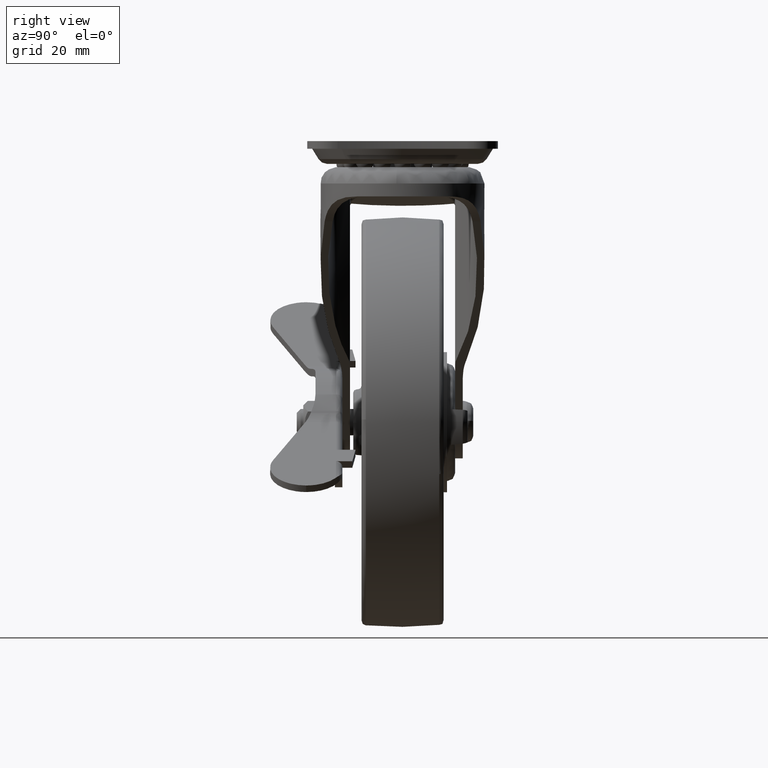
[diagram: clean part render]
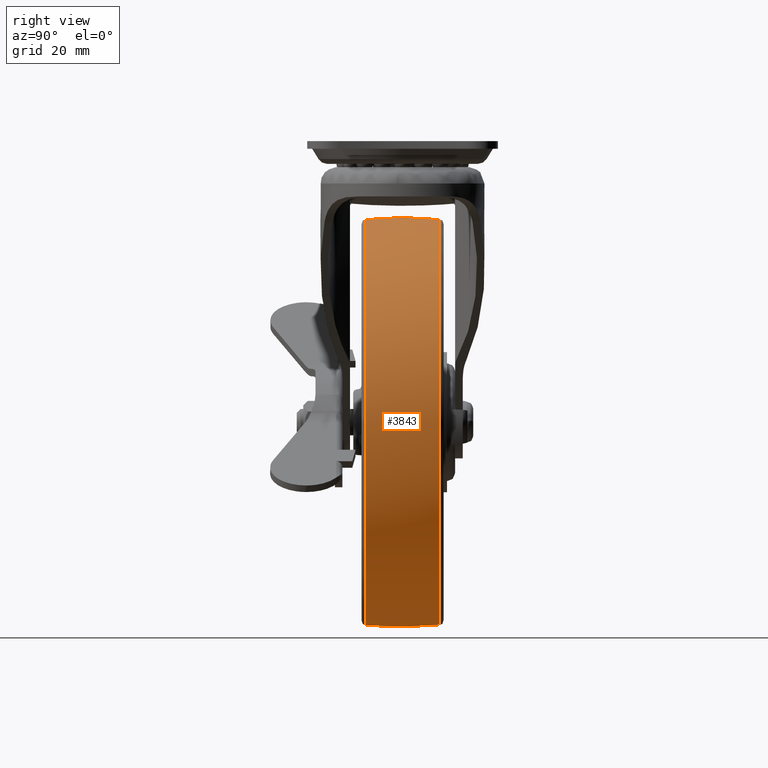
[diagram: same view with one face highlighted and labeled with its STEP entity id]
A machine part, right view. The second image highlights one B-rep face of the part: STEP entity #3843.
In plain terms, the highlighted face is a freeform B-spline surface patch.
Its self-contained STEP definition (entity closure, byte-faithful):
#2851=CARTESIAN_POINT('',(16.859412527473442,-11.167512597833190,-59.533276290392408));
#2852=VERTEX_POINT('',#2851);
#2863=CARTESIAN_POINT('',(61.562073908779453,-11.167494984552761,6.209828626464164));
#2864=VERTEX_POINT('',#2863);
#2865=CARTESIAN_POINT('',(16.859412527473442,-11.167512597833190,-59.533276290392408));
#2866=CARTESIAN_POINT('',(19.779889423920679,-11.167512336681380,-58.706384537097918));
#2867=CARTESIAN_POINT('',(25.075100244093569,-11.167511752581250,-56.775918324539418));
#2868=CARTESIAN_POINT('',(31.449868477677260,-11.167510782123030,-53.409821435803892));
#2869=CARTESIAN_POINT('',(37.164953625297443,-11.167509711725790,-49.610869769303747));
#2870=CARTESIAN_POINT('',(43.420109269480001,-11.167508282070459,-44.446605725990217));
#2871=CARTESIAN_POINT('',(49.691280078881263,-11.167506352003700,-37.332373718013223));
#2872=CARTESIAN_POINT('',(55.070472615917417,-11.167504056032641,-28.733114503879030));
#2873=CARTESIAN_POINT('',(58.236004099876872,-11.167502116083160,-21.376933087126641));
#2874=CARTESIAN_POINT('',(60.566785780693529,-11.167500026810300,-13.383878927019740));
#2875=CARTESIAN_POINT('',(62.001430653033559,-11.167497776846581,-4.705626064282719));
#2876=CARTESIAN_POINT('',(61.946085645110642,-11.167495953496321,2.406929011685041));
#2877=CARTESIAN_POINT('',(61.562073908779453,-11.167494984552761,6.209828626464164));
#2878=B_SPLINE_CURVE_WITH_KNOTS('',3,(#2865,#2866,#2867,#2868,#2869,#2870,#2871,#2872,#2873,#2874,#2875,#2876,#2877),.UNSPECIFIED.,.F.,.U.,(4,1,1,1,1,1,1,1,1,1,4),(0.000000105371925,9.105830402682670,16.862730323061768,21.584321026624391,29.678457207908831,41.145121938275530,49.913713041385542,60.031370087974388,65.090217756134479,74.870641165721864,86.337282250866195),.UNSPECIFIED.);
#2879=EDGE_CURVE('',#2852,#2864,#2878,.T.);
#2993=CARTESIAN_POINT('',(0.0,-11.167479573969530,61.874480627391677));
#2994=VERTEX_POINT('',#2993);
#2995=CARTESIAN_POINT('',(61.562073908779453,-11.167494984552761,6.209828626464164));
#2996=CARTESIAN_POINT('',(61.276863344680301,-11.167494201487919,9.038341430434523));
#2997=CARTESIAN_POINT('',(60.335602527341393,-11.167492678676330,14.538897498625211));
#2998=CARTESIAN_POINT('',(57.631570533830399,-11.167490295754421,23.146262758455290));
#2999=CARTESIAN_POINT('',(53.880225632488539,-11.167488166177050,30.838520856866261));
#3000=CARTESIAN_POINT('',(49.095677892527831,-11.167486206877779,37.915716552200081));
#3001=CARTESIAN_POINT('',(44.019795432876840,-11.167484597928169,43.727411819881759));
#3002=CARTESIAN_POINT('',(38.327256764961703,-11.167483205525150,48.756918576589712));
#3003=CARTESIAN_POINT('',(32.866604230864688,-11.167482158122439,52.540247989536837));
#3004=CARTESIAN_POINT('',(27.273556623982650,-11.167481295501929,55.656123085024852));
#3005=CARTESIAN_POINT('',(21.065115627156640,-11.167480553017009,58.338059976592220));
#3006=CARTESIAN_POINT('',(11.844963400643280,-11.167479799059819,61.061428851653012));
#3007=CARTESIAN_POINT('',(4.619748107059763,-11.167479573745160,61.875291857040651));
#3008=CARTESIAN_POINT('',(0.0,-11.167479573969530,61.874480627391677));
#3009=B_SPLINE_CURVE_WITH_KNOTS('',3,(#2995,#2996,#2997,#2998,#2999,#3000,#3001,#3002,#3003,#3004,#3005,#3006,#3007,#3008),.UNSPECIFIED.,.F.,.U.,(4,1,1,1,1,1,1,1,1,1,1,4),(0.000000113590133,8.528566040540525,16.701884107855459,27.007324096017189,34.114553427486349,42.287852773010989,50.105663590315913,56.857487190341757,62.187883483216382,69.295100764930510,77.113012623152315,90.972028512225108),.UNSPECIFIED.);
#3010=EDGE_CURVE('',#2864,#2994,#3009,.T.);
#3012=CARTESIAN_POINT('',(-61.460647073771582,-11.167501287082860,7.144222296539931));
#3013=VERTEX_POINT('',#3012);
#3030=CARTESIAN_POINT('',(0.0,-11.167512887776420,-61.874476883661302));
#3031=VERTEX_POINT('',#3030);
#3032=CARTESIAN_POINT('',(-61.460647073771582,-11.167501287082860,7.144222296539931));
#3033=CARTESIAN_POINT('',(-61.979180758717654,-11.167501661321150,2.690331571045671));
#3034=CARTESIAN_POINT('',(-62.023983494592237,-11.167502272571690,-3.870004329647657));
#3035=CARTESIAN_POINT('',(-60.610880343321327,-11.167503260472550,-13.149955568758690));
#3036=CARTESIAN_POINT('',(-58.687790853326568,-11.167504073255950,-20.107724461787260));
#3037=CARTESIAN_POINT('',(-55.599155764955050,-11.167505025866619,-27.519172189814331));
#3038=CARTESIAN_POINT('',(-52.012263507580037,-11.167505912542820,-33.783580281619308));
#3039=CARTESIAN_POINT('',(-47.390076977000540,-11.167506882061380,-40.009774576224252));
#3040=CARTESIAN_POINT('',(-41.589999520645861,-11.167507941587990,-46.147214953599850));
#3041=CARTESIAN_POINT('',(-34.364970574592348,-11.167509069054271,-51.740492006263203));
#3042=CARTESIAN_POINT('',(-26.152308543419259,-11.167510182514830,-56.304868922395471));
#3043=CARTESIAN_POINT('',(-17.626020485415719,-11.167511200293610,-59.569308080627721));
#3044=CARTESIAN_POINT('',(-8.696015462472317,-11.167512124876961,-61.480081179273682));
#3045=CARTESIAN_POINT('',(-2.717506502511815,-11.167512660931980,-61.874559378929909));
#3046=CARTESIAN_POINT('',(0.0,-11.167512887776420,-61.874476883661302));
#3047=B_SPLINE_CURVE_WITH_KNOTS('',3,(#3032,#3033,#3034,#3035,#3036,#3037,#3038,#3039,#3040,#3041,#3042,#3043,#3044,#3045,#3046),.UNSPECIFIED.,.F.,.U.,(4,1,1,1,1,1,1,1,1,1,1,1,4),(0.000000125674163,13.451679294680901,19.566083521502861,28.126286304788142,35.055985607053771,43.616132099812603,49.730567388617096,58.290675936112351,68.888968557066391,77.041552464943550,86.416992886463404,96.200054336922094,104.352582866004890),.UNSPECIFIED.);
#3048=EDGE_CURVE('',#3013,#3031,#3047,.T.);
#3050=CARTESIAN_POINT('',(0.0,-11.167512887776420,-61.874476883661302));
#3051=CARTESIAN_POINT('',(2.490154616855790,-11.167512887784779,-61.874544290290928));
#3052=CARTESIAN_POINT('',(8.181917578424297,-11.167512845165810,-61.530410046548710));
#3053=CARTESIAN_POINT('',(13.778981047584640,-11.167512705899011,-60.405873074403580));
#3054=CARTESIAN_POINT('',(16.859412527473442,-11.167512597833190,-59.533276290392408));
#3055=B_SPLINE_CURVE_WITH_KNOTS('',3,(#3050,#3051,#3052,#3053,#3054),.UNSPECIFIED.,.F.,.U.,(4,1,4),(3.378489E-009,7.470466359329732,17.075338907801250),.UNSPECIFIED.);
#3056=EDGE_CURVE('',#3031,#2852,#3055,.T.);
#3091=CARTESIAN_POINT('',(60.979178697177858,11.167504843705689,-10.487635207238760));
#3092=VERTEX_POINT('',#3091);
#3093=CARTESIAN_POINT('',(0.0,11.167495437939090,61.874477968507662));
#3094=VERTEX_POINT('',#3093);
#3095=CARTESIAN_POINT('',(60.979178697177858,11.167504843705689,-10.487635207238760));
#3096=CARTESIAN_POINT('',(61.454820366312262,11.167504482799670,-7.722777641504711));
#3097=CARTESIAN_POINT('',(61.971567659922691,11.167503825740210,-2.687669220174942));
#3098=CARTESIAN_POINT('',(61.833098177472110,11.167502928099809,4.194550428220630));
#3099=CARTESIAN_POINT('',(61.034779648637731,11.167502055586830,10.886883944581291));
#3100=CARTESIAN_POINT('',(59.322536241015399,11.167501091911410,18.281908804220262));
#3101=CARTESIAN_POINT('',(56.243793571941531,11.167500048840139,26.291302977946451));
#3102=CARTESIAN_POINT('',(52.469969469235288,11.167499170475420,33.040896590667479));
#3103=CARTESIAN_POINT('',(48.379155454535812,11.167498428462620,38.746475919660980));
#3104=CARTESIAN_POINT('',(43.725468229670057,11.167497744478970,44.009540186188389));
#3105=CARTESIAN_POINT('',(38.022143675528270,11.167497093876600,49.021054944545753));
#3106=CARTESIAN_POINT('',(30.459285122822841,11.167496430087651,54.141412895598720));
#3107=CARTESIAN_POINT('',(23.072205757853030,11.167495978020860,57.637896885005517));
#3108=CARTESIAN_POINT('',(14.762185127157400,11.167495644110559,60.232394809513650));
#3109=CARTESIAN_POINT('',(7.715056586952141,11.167495473981621,61.566023058931037));
#3110=CARTESIAN_POINT('',(2.384639335212711,11.167495436637100,61.874525518042852));
#3111=CARTESIAN_POINT('',(0.0,11.167495437939090,61.874477968507662));
#3112=B_SPLINE_CURVE_WITH_KNOTS('',3,(#3095,#3096,#3097,#3098,#3099,#3100,#3101,#3102,#3103,#3104,#3105,#3106,#3107,#3108,#3109,#3110,#3111),.UNSPECIFIED.,.F.,.U.,(4,1,1,1,1,1,1,1,1,1,1,1,1,1,4),(0.000000112440716,8.416420182960806,15.149633418515650,20.620347801944138,28.616029244789800,37.874196122649643,46.290636481085883,51.761409532512978,58.915341790764458,67.331776513109531,74.485833931352190,86.268923471231830,91.739657648492880,100.576989569171400,107.730922262188500),.UNSPECIFIED.);
#3113=EDGE_CURVE('',#3092,#3094,#3112,.T.);
#3166=CARTESIAN_POINT('',(-61.479178386582333,11.167516212091961,6.982929586580379));
#3167=VERTEX_POINT('',#3166);
#3178=CARTESIAN_POINT('',(-61.460644520456313,11.167516266079900,7.144222095596518));
#3179=VERTEX_POINT('',#3178);
#3180=CARTESIAN_POINT('',(-61.460644520456313,11.167516266079900,7.144222095596518));
#3181=CARTESIAN_POINT('',(-61.479178386582333,11.167516212091961,6.982929586580379));
#3182=QUASI_UNIFORM_CURVE('',1,(#3180,#3181),.UNSPECIFIED.,.F.,.U.);
#3183=EDGE_CURVE('',#3179,#3167,#3182,.T.);
#3228=CARTESIAN_POINT('',(0.0,11.167511433451340,-61.874475294835499));
#3229=VERTEX_POINT('',#3228);
#3230=CARTESIAN_POINT('',(0.0,11.167511433451340,-61.874475294835499));
#3231=CARTESIAN_POINT('',(3.836261005208519,11.167511433510461,-61.874936839795403));
#3232=CARTESIAN_POINT('',(10.154568963558500,11.167511357835711,-61.284824080287457));
#3233=CARTESIAN_POINT('',(19.582558686323079,11.167511054054829,-58.915940852145532));
#3234=CARTESIAN_POINT('',(27.231321652757241,11.167510652688559,-55.786087644373012));
#3235=CARTESIAN_POINT('',(33.772490525603402,11.167510163517340,-51.971527875860559));
#3236=CARTESIAN_POINT('',(39.160125470060443,11.167509660707140,-48.050617701435407));
#3237=CARTESIAN_POINT('',(44.116113087416103,11.167509088440410,-43.588077583547978));
#3238=CARTESIAN_POINT('',(48.736977072602642,11.167508412958130,-38.320668509546010));
#3239=CARTESIAN_POINT('',(53.531745558452812,11.167507534615529,-31.471349914353720));
#3240=CARTESIAN_POINT('',(58.111738987501752,11.167506366050770,-22.358882952052760));
#3241=CARTESIAN_POINT('',(60.272120825908551,11.167505371332799,-14.602071460544151));
#3242=CARTESIAN_POINT('',(60.979178697177858,11.167504843705689,-10.487635207238760));
#3243=B_SPLINE_CURVE_WITH_KNOTS('',3,(#3230,#3231,#3232,#3233,#3234,#3235,#3236,#3237,#3238,#3239,#3240,#3241,#3242),.UNSPECIFIED.,.F.,.U.,(4,1,1,1,1,1,1,1,1,1,4),(0.000000103656404,11.508688087308910,18.955506656600701,29.110270815815280,36.218589574005172,41.634517271217717,49.081191820645472,56.189556770551647,62.620894583763871,74.129651631407910,86.653792897077679),.UNSPECIFIED.);
#3244=EDGE_CURVE('',#3229,#3092,#3243,.T.);
#3246=CARTESIAN_POINT('',(-61.479178386582333,11.167516212091961,6.982929586580379));
#3247=CARTESIAN_POINT('',(-61.770124513527399,11.167516125314760,4.421797668801317));
#3248=CARTESIAN_POINT('',(-62.065823425153191,11.167515914560720,-1.415674865794476));
#3249=CARTESIAN_POINT('',(-61.202272688932389,11.167515524616229,-10.902578840936140));
#3250=CARTESIAN_POINT('',(-58.869005808712998,11.167515107998129,-19.724648011319950));
#3251=CARTESIAN_POINT('',(-55.747687556496523,11.167514718114230,-27.107231306895091));
#3252=CARTESIAN_POINT('',(-52.197259499532016,11.167514349573780,-33.526891505607153));
#3253=CARTESIAN_POINT('',(-47.868870627222392,11.167513971976650,-39.461032012075890));
#3254=CARTESIAN_POINT('',(-42.375116671419342,11.167513556959710,-45.297394943133384));
#3255=CARTESIAN_POINT('',(-35.684926447192353,11.167513109941130,-50.864048312855232));
#3256=CARTESIAN_POINT('',(-28.542252527820999,11.167512697086730,-55.107653707960047));
#3257=CARTESIAN_POINT('',(-21.551674663134659,11.167512337002460,-58.100235427067403));
#3258=CARTESIAN_POINT('',(-15.339955093197140,11.167512042616121,-60.084338730075849));
#3259=CARTESIAN_POINT('',(-8.004156854296042,11.167511729118390,-61.525917976957167));
#3260=CARTESIAN_POINT('',(-2.713281242241043,11.167511529196910,-61.874573409684388));
#3261=CARTESIAN_POINT('',(0.0,11.167511433451340,-61.874475294835499));
#3262=B_SPLINE_CURVE_WITH_KNOTS('',3,(#3246,#3247,#3248,#3249,#3250,#3251,#3252,#3253,#3254,#3255,#3256,#3257,#3258,#3259,#3260,#3261),.UNSPECIFIED.,.F.,.U.,(4,1,1,1,1,1,1,1,1,1,1,1,1,4),(0.000000124868507,7.732839601489516,17.500667068748360,28.489522183697890,35.001441968726809,41.513303051345673,50.467219237108772,56.978949585864299,65.525834878079280,76.514689404925875,81.805622835584856,88.317499699047147,96.050380110055798,104.190224726093310),.UNSPECIFIED.);
#3263=EDGE_CURVE('',#3167,#3229,#3262,.T.);
#3766=CARTESIAN_POINT('',(-61.328220371281880,-12.295962269001587,7.128894801781356));
#3767=CARTESIAN_POINT('',(-62.081977602067745,-6.171396417675270,7.216512801648682));
#3768=CARTESIAN_POINT('',(-62.081977602067745,0.0,7.216512801648682));
#3769=CARTESIAN_POINT('',(-62.081977602067752,6.171396417675260,7.216512801648682));
#3770=CARTESIAN_POINT('',(-61.328220371281880,12.295962269001564,7.128894801781353));
#3771=CARTESIAN_POINT('',(-61.741167425012129,-12.295962269001581,3.576407548566155));
#3772=CARTESIAN_POINT('',(-62.499999999999993,-6.171396417675267,3.620363545228846));
#3773=CARTESIAN_POINT('',(-62.499999999999993,0.0,3.620363545228846));
#3774=CARTESIAN_POINT('',(-62.499999999999993,6.171396417675259,3.620363545228846));
#3775=CARTESIAN_POINT('',(-61.741167425012129,12.295962269001571,3.576407548566155));
#3776=CARTESIAN_POINT('',(-61.741167425012129,-12.295962269001590,0.0));
#3777=CARTESIAN_POINT('',(-62.500000000000000,-6.171396417675269,0.0));
#3778=CARTESIAN_POINT('',(-62.500000000000000,0.0,0.0));
#3779=CARTESIAN_POINT('',(-62.500000000000000,6.171396417675260,0.0));
#3780=CARTESIAN_POINT('',(-61.741167425012144,12.295962269001569,0.0));
#3781=CARTESIAN_POINT('',(-61.741167425012144,-12.295962269001585,-61.741167425012144));
#3782=CARTESIAN_POINT('',(-62.500000000000014,-6.171396417675270,-62.500000000000014));
#3783=CARTESIAN_POINT('',(-62.500000000000000,0.0,-62.500000000000000));
#3784=CARTESIAN_POINT('',(-62.500000000000014,6.171396417675259,-62.500000000000014));
#3785=CARTESIAN_POINT('',(-61.741167425012144,12.295962269001564,-61.741167425012144));
#3786=CARTESIAN_POINT('',(0.0,-12.295962269001590,-61.741167425012129));
#3787=CARTESIAN_POINT('',(0.0,-6.171396417675269,-62.500000000000000));
#3788=CARTESIAN_POINT('',(0.0,0.0,-62.500000000000000));
#3789=CARTESIAN_POINT('',(0.0,6.171396417675260,-62.500000000000000));
#3790=CARTESIAN_POINT('',(0.0,12.295962269001569,-61.741167425012144));
#3791=CARTESIAN_POINT('',(61.741167425012144,-12.295962269001585,-61.741167425012144));
#3792=CARTESIAN_POINT('',(62.500000000000014,-6.171396417675270,-62.500000000000014));
#3793=CARTESIAN_POINT('',(62.500000000000000,0.0,-62.500000000000000));
#3794=CARTESIAN_POINT('',(62.500000000000014,6.171396417675259,-62.500000000000014));
#3795=CARTESIAN_POINT('',(61.741167425012144,12.295962269001564,-61.741167425012144));
#3796=CARTESIAN_POINT('',(61.741167425012129,-12.295962269001590,0.0));
#3797=CARTESIAN_POINT('',(62.500000000000000,-6.171396417675269,0.0));
#3798=CARTESIAN_POINT('',(62.500000000000000,0.0,0.0));
#3799=CARTESIAN_POINT('',(62.500000000000000,6.171396417675260,0.0));
#3800=CARTESIAN_POINT('',(61.741167425012144,12.295962269001569,0.0));
#3801=CARTESIAN_POINT('',(61.741167425012144,-12.295962269001585,61.741167425012144));
#3802=CARTESIAN_POINT('',(62.500000000000014,-6.171396417675270,62.500000000000014));
#3803=CARTESIAN_POINT('',(62.500000000000000,0.0,62.500000000000000));
#3804=CARTESIAN_POINT('',(62.500000000000014,6.171396417675259,62.500000000000014));
#3805=CARTESIAN_POINT('',(61.741167425012144,12.295962269001564,61.741167425012144));
#3806=CARTESIAN_POINT('',(0.0,-12.295962269001590,61.741167425012129));
#3807=CARTESIAN_POINT('',(0.0,-6.171396417675269,62.500000000000000));
#3808=CARTESIAN_POINT('',(0.0,0.0,62.500000000000000));
#3809=CARTESIAN_POINT('',(0.0,6.171396417675260,62.500000000000000));
#3810=CARTESIAN_POINT('',(0.0,12.295962269001569,61.741167425012144));
#3818=(BOUNDED_SURFACE()B_SPLINE_SURFACE(2,2,((#3766,#3771,#3776,#3781,#3786,#3791,#3796,#3801,#3806),(#3767,#3772,#3777,#3782,#3787,#3792,#3797,#3802,#3807),(#3768,#3773,#3778,#3783,#3788,#3793,#3798,#3803,#3808),(#3769,#3774,#3779,#3784,#3789,#3794,#3799,#3804,#3809),(#3770,#3775,#3780,#3785,#3790,#3795,#3800,#3805,#3810)),.UNSPECIFIED.,.F.,.F.,.U.)B_SPLINE_SURFACE_WITH_KNOTS((3,2,3),(3,2,2,2,3),(0.0,12.527872647056061,25.055745294112111),(0.0,8.284269519228245,111.837660112501990,215.391050705775800,318.944441299049570),.UNSPECIFIED.)GEOMETRIC_REPRESENTATION_ITEM()RATIONAL_B_SPLINE_SURFACE(((0.925297864220014,0.944330538634696,0.966988483466114,0.683764113988185,0.966988483466114,0.683764113988185,0.966988483466114,0.683764113988185,0.966988483466114),(0.939172678191685,0.958490746993513,0.981488447034224,0.694017136554153,0.981488447034224,0.694017136554153,0.981488447034224,0.694017136554153,0.981488447034224),(0.956886126402807,0.976568547383107,1.0,0.707106781186548,1.0,0.707106781186548,1.0,0.707106781186548,1.0),(0.939172678191685,0.958490746993513,0.981488447034224,0.694017136554153,0.981488447034224,0.694017136554153,0.981488447034224,0.694017136554153,0.981488447034224),(0.925297864220014,0.944330538634696,0.966988483466114,0.683764113988185,0.966988483466114,0.683764113988185,0.966988483466114,0.683764113988185,0.966988483466114)))REPRESENTATION_ITEM('')SURFACE());
#3819=ORIENTED_EDGE('',*,*,#3048,.F.);
#3820=CARTESIAN_POINT('',(-61.460647073771582,-11.167501287082860,7.144222296539931));
#3821=CARTESIAN_POINT('',(-62.289172906076899,-3.753615049506710,7.240531576101084));
#3822=CARTESIAN_POINT('',(-62.289016703414937,3.753628833036754,7.240513451058643));
#3823=CARTESIAN_POINT('',(-61.460644520456313,11.167516266079900,7.144222095596518));
#3824=B_SPLINE_CURVE_WITH_KNOTS('',3,(#3820,#3821,#3822,#3823),.UNSPECIFIED.,.F.,.U.,(4,4),(1.917627E-009,22.381715993562018),.UNSPECIFIED.);
#3825=EDGE_CURVE('',#3013,#3179,#3824,.T.);
#3826=ORIENTED_EDGE('',*,*,#3825,.T.);
#3827=ORIENTED_EDGE('',*,*,#3183,.T.);
#3828=ORIENTED_EDGE('',*,*,#3263,.T.);
#3829=ORIENTED_EDGE('',*,*,#3244,.T.);
#3830=ORIENTED_EDGE('',*,*,#3113,.T.);
#3831=CARTESIAN_POINT('',(0.0,-11.167479573969530,61.874480627391677));
#3832=CARTESIAN_POINT('',(0.0,-3.753608505247394,62.708665364485178));
#3833=CARTESIAN_POINT('',(0.0,3.753621871153090,62.708347989652090));
#3834=CARTESIAN_POINT('',(0.0,11.167495437939090,61.874477968507662));
#3835=B_SPLINE_CURVE_WITH_KNOTS('',3,(#3831,#3832,#3833,#3834),.UNSPECIFIED.,.F.,.U.,(4,4),(1.917030E-009,22.381673252416508),.UNSPECIFIED.);
#3836=EDGE_CURVE('',#2994,#3094,#3835,.T.);
#3837=ORIENTED_EDGE('',*,*,#3836,.F.);
#3838=ORIENTED_EDGE('',*,*,#3010,.F.);
#3839=ORIENTED_EDGE('',*,*,#2879,.F.);
#3840=ORIENTED_EDGE('',*,*,#3056,.F.);
#3841=EDGE_LOOP('',(#3819,#3826,#3827,#3828,#3829,#3830,#3837,#3838,#3839,#3840));
#3842=FACE_OUTER_BOUND('',#3841,.T.);
#3843=ADVANCED_FACE('',(#3842),#3818,.T.);